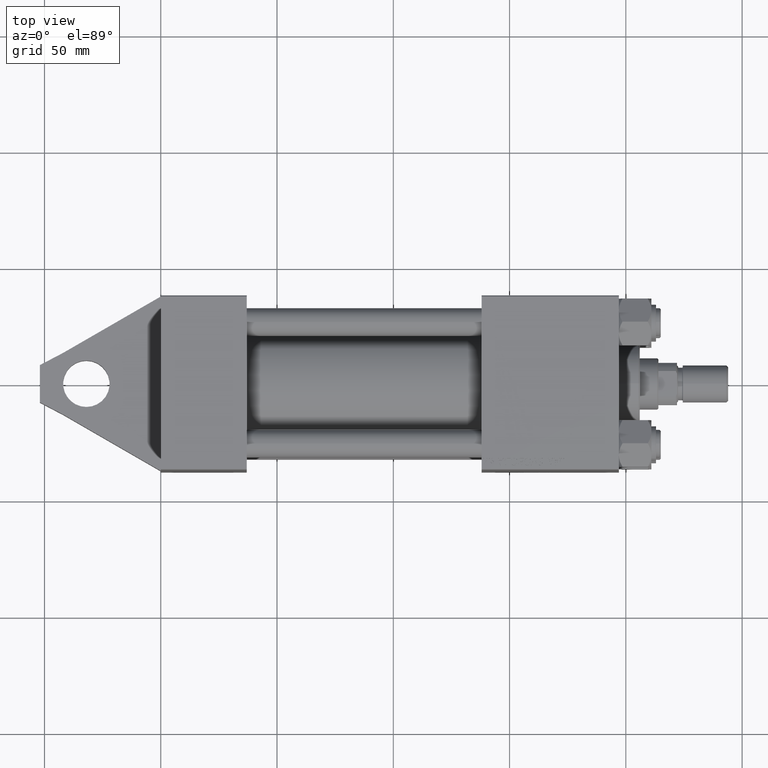
[diagram: clean part render]
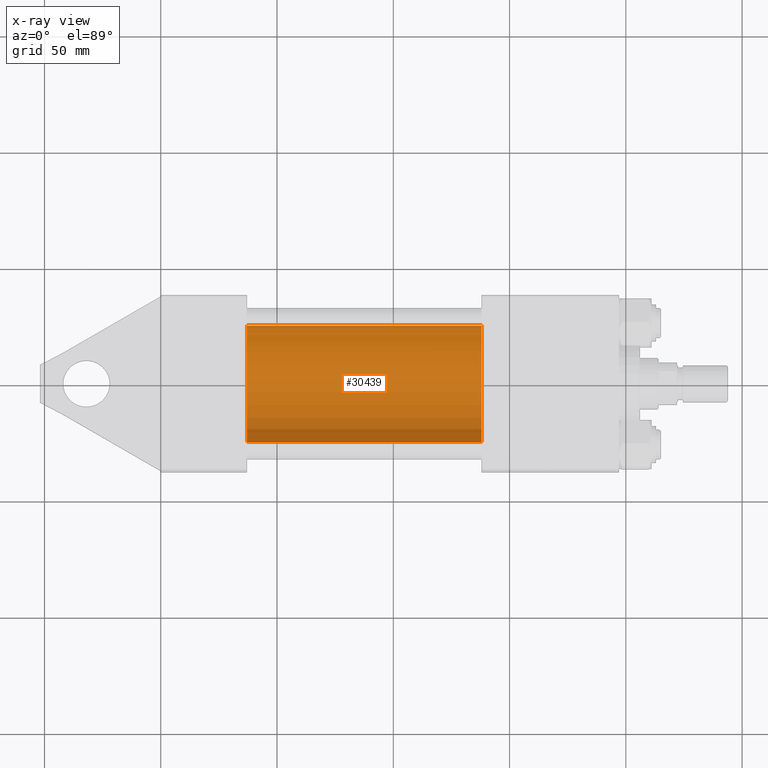
[diagram: x-ray — body ghosted, one internal face saturated and labeled with its STEP entity id]
A machine part, top view, then the same camera in x-ray: the body is ghosted and one INTERNAL B-rep face — a face not visible from any outside direction — is saturated and labeled: STEP entity #30439.
In plain terms, the highlighted cylindrical surface (partial cylindrical patch) has radius 25 mm, axis along (-1, -0, 0).
Its self-contained STEP definition (entity closure, byte-faithful):
#2815 = VERTEX_POINT ( 'NONE', #14326 ) ;
#2929 = EDGE_CURVE ( 'NONE', #4406, #7836, #26521, .T. ) ;
#3514 = EDGE_CURVE ( 'NONE', #44933, #2815, #19944, .T. ) ;
#4077 = DIRECTION ( 'NONE',  ( 0.000000000000000000, 0.000000000000000000, 1.000000000000000000 ) ) ;
#4406 = VERTEX_POINT ( 'NONE', #10743 ) ;
#7385 = CYLINDRICAL_SURFACE ( 'NONE', #39822, 25.00000000000000000 ) ;
#7836 = VERTEX_POINT ( 'NONE', #18633 ) ;
#9547 = CIRCLE ( 'NONE', #41089, 25.00000000000000000 ) ;
#10328 = CARTESIAN_POINT ( 'NONE',  ( 37.00000000000000000, -2.602085213965210642E-15, 0.000000000000000000 ) ) ;
#10743 = CARTESIAN_POINT ( 'NONE',  ( 138.0000000000000000, -2.602085213965210642E-15, 25.00000000000000000 ) ) ;
#11360 = CARTESIAN_POINT ( 'NONE',  ( 138.0000000000000000, -2.602085213965210642E-15, 0.000000000000000000 ) ) ;
#13279 = CARTESIAN_POINT ( 'NONE',  ( 138.0000000000000000, -2.602085213965210642E-15, 0.000000000000000000 ) ) ;
#14326 = CARTESIAN_POINT ( 'NONE',  ( 37.00000000000000000, 4.595317839031724996E-16, -25.00000000000000000 ) ) ;
#16418 = DIRECTION ( 'NONE',  ( -1.000000000000000000, -0.000000000000000000, -0.000000000000000000 ) ) ;
#18540 = EDGE_CURVE ( 'NONE', #7836, #2815, #9547, .T. ) ;
#18633 = CARTESIAN_POINT ( 'NONE',  ( 37.00000000000000000, -2.602085213965210642E-15, 25.00000000000000000 ) ) ;
#18714 = EDGE_CURVE ( 'NONE', #4406, #44933, #26831, .T. ) ;
#19944 = LINE ( 'NONE', #23710, #32492 ) ;
#23079 = ORIENTED_EDGE ( 'NONE', *, *, #2929, .F. ) ;
#23710 = CARTESIAN_POINT ( 'NONE',  ( 138.0000000000000000, 4.595317839031724996E-16, -25.00000000000000000 ) ) ;
#24110 = DIRECTION ( 'NONE',  ( 0.000000000000000000, 0.000000000000000000, -1.000000000000000000 ) ) ;
#24915 = DIRECTION ( 'NONE',  ( 1.000000000000000000, 0.000000000000000000, 0.000000000000000000 ) ) ;
#25705 = DIRECTION ( 'NONE',  ( -1.000000000000000000, -0.000000000000000000, -0.000000000000000000 ) ) ;
#26521 = LINE ( 'NONE', #45086, #41159 ) ;
#26831 = CIRCLE ( 'NONE', #32110, 25.00000000000000000 ) ;
#30439 = ADVANCED_FACE ( 'NONE', ( #35831 ), #7385, .F. ) ;
#30837 = CARTESIAN_POINT ( 'NONE',  ( 138.0000000000000000, 4.595317839031724996E-16, -25.00000000000000000 ) ) ;
#32110 = AXIS2_PLACEMENT_3D ( 'NONE', #13279, #35160, #24110 ) ;
#32492 = VECTOR ( 'NONE', #16418, 1000.000000000000000 ) ;
#35160 = DIRECTION ( 'NONE',  ( 1.000000000000000000, 0.000000000000000000, 0.000000000000000000 ) ) ;
#35831 = FACE_OUTER_BOUND ( 'NONE', #37580, .T. ) ;
#36574 = ORIENTED_EDGE ( 'NONE', *, *, #3514, .T. ) ;
#37580 = EDGE_LOOP ( 'NONE', ( #39405, #36574, #45170, #23079 ) ) ;
#39249 = DIRECTION ( 'NONE',  ( 0.000000000000000000, 0.000000000000000000, -1.000000000000000000 ) ) ;
#39405 = ORIENTED_EDGE ( 'NONE', *, *, #18714, .T. ) ;
#39822 = AXIS2_PLACEMENT_3D ( 'NONE', #11360, #25705, #4077 ) ;
#40862 = DIRECTION ( 'NONE',  ( -1.000000000000000000, -0.000000000000000000, -0.000000000000000000 ) ) ;
#41089 = AXIS2_PLACEMENT_3D ( 'NONE', #10328, #24915, #39249 ) ;
#41159 = VECTOR ( 'NONE', #40862, 1000.000000000000000 ) ;
#44933 = VERTEX_POINT ( 'NONE', #30837 ) ;
#45086 = CARTESIAN_POINT ( 'NONE',  ( 138.0000000000000000, -2.602085213965210642E-15, 25.00000000000000000 ) ) ;
#45170 = ORIENTED_EDGE ( 'NONE', *, *, #18540, .F. ) ;